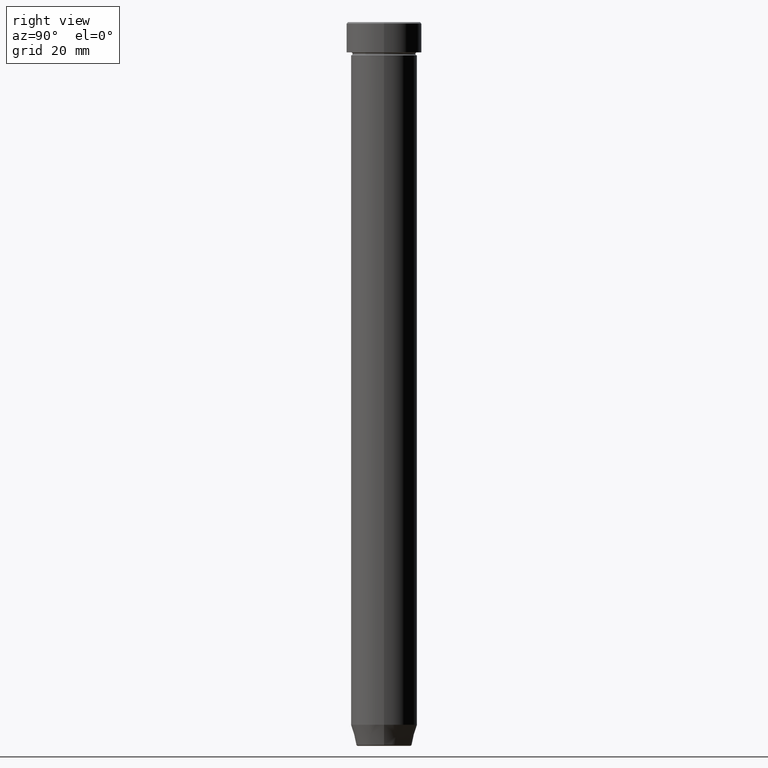
[diagram: clean part render]
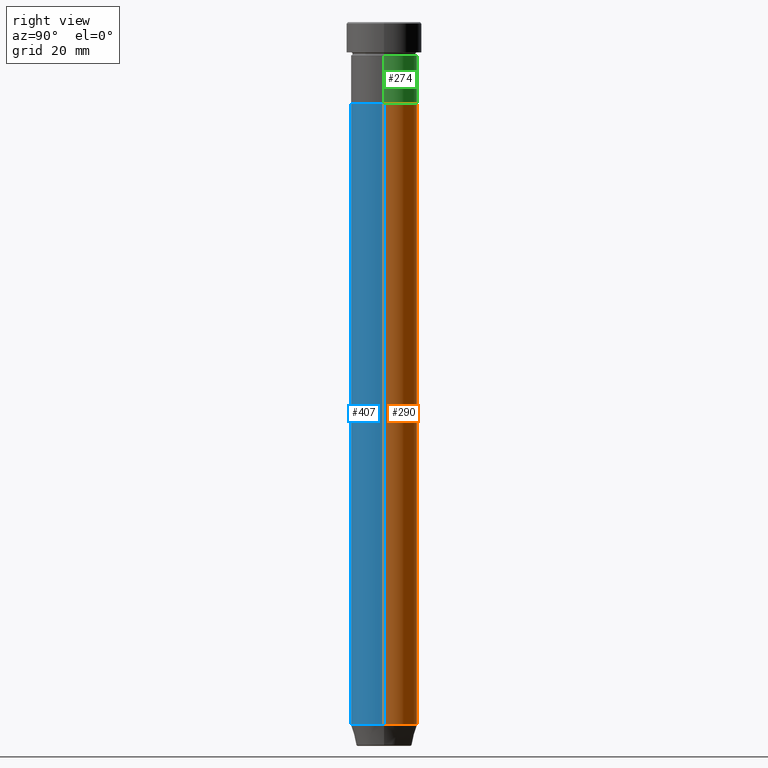
[diagram: same view with three faces highlighted in distinct colors, each labeled with its STEP entity id]
A machine part, right view with three faces highlighted in distinct colors.
Their STEP definitions:

[orange] entity #290 — the highlighted cylindrical surface (edge-blend (fillet) strip) has radius 11 mm, axis along (-0, -0, 1).
#36 = DIRECTION ( 'NONE',  ( 1.000000000000000000, 0.000000000000000000, 0.000000000000000000 ) ) ;
#38 = LINE ( 'NONE', #81, #128 ) ;
#63 = VERTEX_POINT ( 'NONE', #102 ) ;
#73 = CYLINDRICAL_SURFACE ( 'NONE', #103, 11.00000000000000000 ) ;
#77 = EDGE_CURVE ( 'NONE', #380, #328, #377, .T. ) ;
#80 = VECTOR ( 'NONE', #234, 1000.000000000000000 ) ;
#81 = CARTESIAN_POINT ( 'NONE',  ( -11.00000000000000000, 1.347111479062088405E-15, 0.000000000000000000 ) ) ;
#85 = CIRCLE ( 'NONE', #301, 11.00000000000000000 ) ;
#102 = CARTESIAN_POINT ( 'NONE',  ( -11.00000000000000000, 1.347111479062088405E-15, -232.9999999999999716 ) ) ;
#103 = AXIS2_PLACEMENT_3D ( 'NONE', #249, #575, #433 ) ;
#123 = CARTESIAN_POINT ( 'NONE',  ( -11.00000000000000000, 1.347111479062088405E-15, -27.00000000000000000 ) ) ;
#128 = VECTOR ( 'NONE', #582, 1000.000000000000000 ) ;
#147 = EDGE_CURVE ( 'NONE', #328, #446, #85, .T. ) ;
#162 = DIRECTION ( 'NONE',  ( -0.000000000000000000, -0.000000000000000000, 1.000000000000000000 ) ) ;
#191 = EDGE_LOOP ( 'NONE', ( #360, #547, #221, #313 ) ) ;
#221 = ORIENTED_EDGE ( 'NONE', *, *, #147, .F. ) ;
#234 = DIRECTION ( 'NONE',  ( -0.000000000000000000, -0.000000000000000000, 1.000000000000000000 ) ) ;
#237 = CARTESIAN_POINT ( 'NONE',  ( 11.00000000000000000, 0.000000000000000000, 0.000000000000000000 ) ) ;
#249 = CARTESIAN_POINT ( 'NONE',  ( 0.000000000000000000, 0.000000000000000000, 0.000000000000000000 ) ) ;
#256 = CIRCLE ( 'NONE', #497, 11.00000000000000000 ) ;
#265 = DIRECTION ( 'NONE',  ( -0.000000000000000000, -0.000000000000000000, 1.000000000000000000 ) ) ;
#290 = ADVANCED_FACE ( 'NONE', ( #481 ), #73, .T. ) ;
#301 = AXIS2_PLACEMENT_3D ( 'NONE', #487, #162, #308 ) ;
#308 = DIRECTION ( 'NONE',  ( 1.000000000000000000, 0.000000000000000000, 0.000000000000000000 ) ) ;
#313 = ORIENTED_EDGE ( 'NONE', *, *, #77, .F. ) ;
#318 = EDGE_CURVE ( 'NONE', #380, #63, #256, .T. ) ;
#328 = VERTEX_POINT ( 'NONE', #363 ) ;
#358 = CARTESIAN_POINT ( 'NONE',  ( 0.000000000000000000, 0.000000000000000000, -232.9999999999999716 ) ) ;
#360 = ORIENTED_EDGE ( 'NONE', *, *, #318, .T. ) ;
#363 = CARTESIAN_POINT ( 'NONE',  ( 11.00000000000000000, 0.000000000000000000, -27.00000000000000000 ) ) ;
#377 = LINE ( 'NONE', #237, #80 ) ;
#380 = VERTEX_POINT ( 'NONE', #526 ) ;
#433 = DIRECTION ( 'NONE',  ( 1.000000000000000000, 0.000000000000000000, 0.000000000000000000 ) ) ;
#446 = VERTEX_POINT ( 'NONE', #123 ) ;
#481 = FACE_OUTER_BOUND ( 'NONE', #191, .T. ) ;
#487 = CARTESIAN_POINT ( 'NONE',  ( 0.000000000000000000, 0.000000000000000000, -27.00000000000000000 ) ) ;
#497 = AXIS2_PLACEMENT_3D ( 'NONE', #358, #265, #36 ) ;
#501 = EDGE_CURVE ( 'NONE', #63, #446, #38, .T. ) ;
#526 = CARTESIAN_POINT ( 'NONE',  ( 11.00000000000000000, 0.000000000000000000, -232.9999999999999716 ) ) ;
#547 = ORIENTED_EDGE ( 'NONE', *, *, #501, .T. ) ;
#575 = DIRECTION ( 'NONE',  ( -0.000000000000000000, -0.000000000000000000, 1.000000000000000000 ) ) ;
#582 = DIRECTION ( 'NONE',  ( -0.000000000000000000, -0.000000000000000000, 1.000000000000000000 ) ) ;

[blue] entity #407 — the highlighted cylindrical surface (edge-blend (fillet) strip) has radius 11 mm, axis along (-0, -0, 1).
#24 = DIRECTION ( 'NONE',  ( 1.000000000000000000, 0.000000000000000000, 0.000000000000000000 ) ) ;
#38 = LINE ( 'NONE', #81, #128 ) ;
#63 = VERTEX_POINT ( 'NONE', #102 ) ;
#76 = DIRECTION ( 'NONE',  ( 1.000000000000000000, 0.000000000000000000, 0.000000000000000000 ) ) ;
#77 = EDGE_CURVE ( 'NONE', #380, #328, #377, .T. ) ;
#80 = VECTOR ( 'NONE', #234, 1000.000000000000000 ) ;
#81 = CARTESIAN_POINT ( 'NONE',  ( -11.00000000000000000, 1.347111479062088405E-15, 0.000000000000000000 ) ) ;
#102 = CARTESIAN_POINT ( 'NONE',  ( -11.00000000000000000, 1.347111479062088405E-15, -232.9999999999999716 ) ) ;
#106 = ORIENTED_EDGE ( 'NONE', *, *, #77, .T. ) ;
#123 = CARTESIAN_POINT ( 'NONE',  ( -11.00000000000000000, 1.347111479062088405E-15, -27.00000000000000000 ) ) ;
#128 = VECTOR ( 'NONE', #582, 1000.000000000000000 ) ;
#129 = DIRECTION ( 'NONE',  ( -0.000000000000000000, -0.000000000000000000, 1.000000000000000000 ) ) ;
#157 = DIRECTION ( 'NONE',  ( -0.000000000000000000, -0.000000000000000000, 1.000000000000000000 ) ) ;
#205 = DIRECTION ( 'NONE',  ( 1.000000000000000000, 0.000000000000000000, 0.000000000000000000 ) ) ;
#224 = CIRCLE ( 'NONE', #563, 11.00000000000000000 ) ;
#234 = DIRECTION ( 'NONE',  ( -0.000000000000000000, -0.000000000000000000, 1.000000000000000000 ) ) ;
#237 = CARTESIAN_POINT ( 'NONE',  ( 11.00000000000000000, 0.000000000000000000, 0.000000000000000000 ) ) ;
#252 = ORIENTED_EDGE ( 'NONE', *, *, #531, .F. ) ;
#264 = FACE_OUTER_BOUND ( 'NONE', #485, .T. ) ;
#328 = VERTEX_POINT ( 'NONE', #363 ) ;
#329 = ORIENTED_EDGE ( 'NONE', *, *, #362, .T. ) ;
#362 = EDGE_CURVE ( 'NONE', #63, #380, #224, .T. ) ;
#363 = CARTESIAN_POINT ( 'NONE',  ( 11.00000000000000000, 0.000000000000000000, -27.00000000000000000 ) ) ;
#365 = AXIS2_PLACEMENT_3D ( 'NONE', #443, #129, #76 ) ;
#377 = LINE ( 'NONE', #237, #80 ) ;
#380 = VERTEX_POINT ( 'NONE', #526 ) ;
#398 = CARTESIAN_POINT ( 'NONE',  ( 0.000000000000000000, 0.000000000000000000, -232.9999999999999716 ) ) ;
#407 = ADVANCED_FACE ( 'NONE', ( #264 ), #535, .T. ) ;
#443 = CARTESIAN_POINT ( 'NONE',  ( 0.000000000000000000, 0.000000000000000000, 0.000000000000000000 ) ) ;
#446 = VERTEX_POINT ( 'NONE', #123 ) ;
#456 = AXIS2_PLACEMENT_3D ( 'NONE', #516, #157, #24 ) ;
#475 = DIRECTION ( 'NONE',  ( -0.000000000000000000, -0.000000000000000000, 1.000000000000000000 ) ) ;
#485 = EDGE_LOOP ( 'NONE', ( #543, #329, #106, #252 ) ) ;
#501 = EDGE_CURVE ( 'NONE', #63, #446, #38, .T. ) ;
#516 = CARTESIAN_POINT ( 'NONE',  ( 0.000000000000000000, 0.000000000000000000, -27.00000000000000000 ) ) ;
#526 = CARTESIAN_POINT ( 'NONE',  ( 11.00000000000000000, 0.000000000000000000, -232.9999999999999716 ) ) ;
#531 = EDGE_CURVE ( 'NONE', #446, #328, #578, .T. ) ;
#535 = CYLINDRICAL_SURFACE ( 'NONE', #365, 11.00000000000000000 ) ;
#543 = ORIENTED_EDGE ( 'NONE', *, *, #501, .F. ) ;
#563 = AXIS2_PLACEMENT_3D ( 'NONE', #398, #475, #205 ) ;
#578 = CIRCLE ( 'NONE', #456, 11.00000000000000000 ) ;
#582 = DIRECTION ( 'NONE',  ( -0.000000000000000000, -0.000000000000000000, 1.000000000000000000 ) ) ;

[green] entity #274 — the highlighted cylindrical surface (edge-blend (fillet) strip) has radius 11 mm, axis along (-0, -0, 1).
#4 = EDGE_CURVE ( 'NONE', #455, #572, #414, .T. ) ;
#6 = DIRECTION ( 'NONE',  ( -0.000000000000000000, -0.000000000000000000, 1.000000000000000000 ) ) ;
#11 = CARTESIAN_POINT ( 'NONE',  ( -11.00000000000000000, 1.347111479062088405E-15, 0.000000000000000000 ) ) ;
#25 = LINE ( 'NONE', #155, #29 ) ;
#29 = VECTOR ( 'NONE', #518, 1000.000000000000000 ) ;
#60 = CYLINDRICAL_SURFACE ( 'NONE', #415, 11.00000000000000000 ) ;
#68 = VECTOR ( 'NONE', #6, 1000.000000000000000 ) ;
#72 = EDGE_CURVE ( 'NONE', #572, #541, #505, .T. ) ;
#74 = CARTESIAN_POINT ( 'NONE',  ( 11.00000000000000000, 0.000000000000000000, -11.00000000000000000 ) ) ;
#75 = CARTESIAN_POINT ( 'NONE',  ( 11.00000000000000000, 0.000000000000000000, -27.00000000000000000 ) ) ;
#109 = VERTEX_POINT ( 'NONE', #74 ) ;
#111 = DIRECTION ( 'NONE',  ( 1.000000000000000000, 0.000000000000000000, 0.000000000000000000 ) ) ;
#113 = ORIENTED_EDGE ( 'NONE', *, *, #548, .F. ) ;
#114 = CARTESIAN_POINT ( 'NONE',  ( -11.00000000000000000, 1.347111479062088405E-15, -11.00000000000000000 ) ) ;
#122 = EDGE_LOOP ( 'NONE', ( #148, #156, #113, #419 ) ) ;
#130 = EDGE_CURVE ( 'NONE', #455, #109, #25, .T. ) ;
#148 = ORIENTED_EDGE ( 'NONE', *, *, #4, .T. ) ;
#155 = CARTESIAN_POINT ( 'NONE',  ( 11.00000000000000000, 0.000000000000000000, 0.000000000000000000 ) ) ;
#156 = ORIENTED_EDGE ( 'NONE', *, *, #72, .T. ) ;
#195 = DIRECTION ( 'NONE',  ( -0.000000000000000000, -0.000000000000000000, 1.000000000000000000 ) ) ;
#222 = CARTESIAN_POINT ( 'NONE',  ( 0.000000000000000000, 0.000000000000000000, -27.00000000000000000 ) ) ;
#255 = AXIS2_PLACEMENT_3D ( 'NONE', #222, #546, #278 ) ;
#259 = DIRECTION ( 'NONE',  ( 1.000000000000000000, 0.000000000000000000, 0.000000000000000000 ) ) ;
#268 = CARTESIAN_POINT ( 'NONE',  ( -11.00000000000000000, 1.347111479062088405E-15, -27.00000000000000000 ) ) ;
#274 = ADVANCED_FACE ( 'NONE', ( #286 ), #60, .T. ) ;
#278 = DIRECTION ( 'NONE',  ( 1.000000000000000000, 0.000000000000000000, 0.000000000000000000 ) ) ;
#286 = FACE_OUTER_BOUND ( 'NONE', #122, .T. ) ;
#298 = CARTESIAN_POINT ( 'NONE',  ( 0.000000000000000000, 0.000000000000000000, -11.00000000000000000 ) ) ;
#306 = DIRECTION ( 'NONE',  ( -0.000000000000000000, -0.000000000000000000, 1.000000000000000000 ) ) ;
#368 = CIRCLE ( 'NONE', #587, 11.00000000000000000 ) ;
#414 = CIRCLE ( 'NONE', #255, 11.00000000000000000 ) ;
#415 = AXIS2_PLACEMENT_3D ( 'NONE', #423, #195, #111 ) ;
#419 = ORIENTED_EDGE ( 'NONE', *, *, #130, .F. ) ;
#423 = CARTESIAN_POINT ( 'NONE',  ( 0.000000000000000000, 0.000000000000000000, 0.000000000000000000 ) ) ;
#455 = VERTEX_POINT ( 'NONE', #75 ) ;
#505 = LINE ( 'NONE', #11, #68 ) ;
#518 = DIRECTION ( 'NONE',  ( -0.000000000000000000, -0.000000000000000000, 1.000000000000000000 ) ) ;
#541 = VERTEX_POINT ( 'NONE', #114 ) ;
#546 = DIRECTION ( 'NONE',  ( -0.000000000000000000, -0.000000000000000000, 1.000000000000000000 ) ) ;
#548 = EDGE_CURVE ( 'NONE', #109, #541, #368, .T. ) ;
#572 = VERTEX_POINT ( 'NONE', #268 ) ;
#587 = AXIS2_PLACEMENT_3D ( 'NONE', #298, #306, #259 ) ;